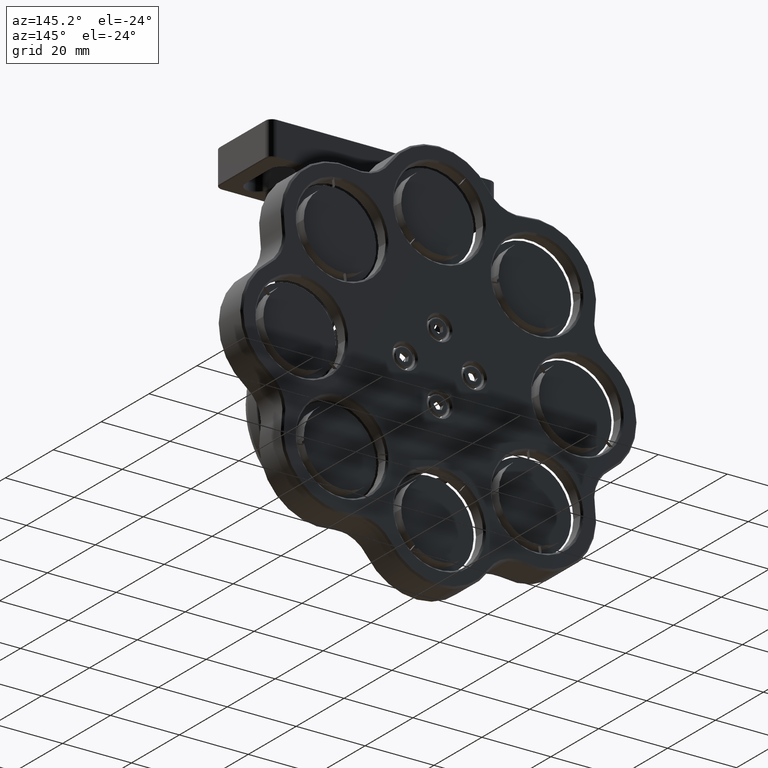
[diagram: clean part render]
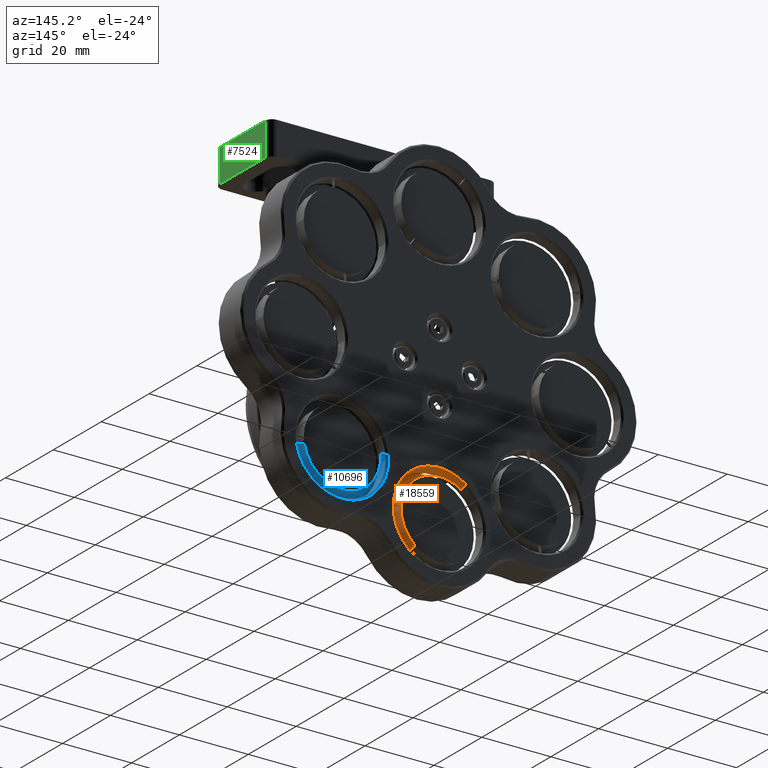
[diagram: same view with three faces highlighted in distinct colors, each labeled with its STEP entity id]
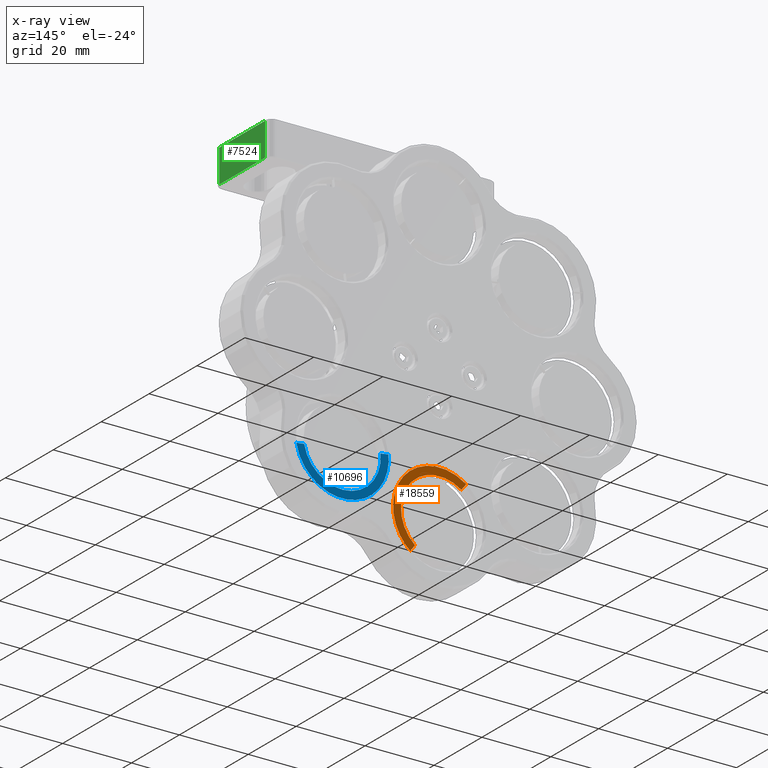
[diagram: x-ray of the same camera — body ghosted, the three highlighted faces saturated]
A machine part, auxiliary view with three faces highlighted in distinct colors.
The next image is the same camera in x-ray (body ghosted, the three faces saturated) — at least one of them is partly hidden behind the body in this view.
Their STEP definitions:

[orange] entity #18559 — the highlighted planar face has unit normal (-0, 1, 0).
#343 = CARTESIAN_POINT ( 'NONE',  ( -18.81061468662850800, 42.07911804988290072, 42.22013247031426886 ) ) ;
#544 = CARTESIAN_POINT ( 'NONE',  ( -27.35836673551142439, 42.07911804988290783, 43.21816426927031074 ) ) ;
#637 = B_SPLINE_CURVE_WITH_KNOTS ( 'NONE', 3,
 ( #16994, #6451, #3490, #9482, #15507, #18763, #14029, #2118, #1917, #12456, #3687, #2016, #12353, #17090, #3589, #8109, #544, #12548, #6642, #12643, #5166, #5262, #11168, #4871, #2213, #8198, #14215, #11262, #3780, #9777, #15799, #8294, #343, #18374, #10878, #16896, #14713, #11747, #8589, #17381, #10164, #4163, #6840, #1209, #918, #9872, #17674, #5455, #826, #8392, #8689, #12928, #10069, #5554, #11453, #6934, #17475, #3974, #9971, #7217, #2502, #18950, #15898, #16093, #7122, #4069, #8487, #3873, #13226, #19246, #14516, #15995, #1019, #10268, #2600, #12835, #7027, #13126, #13029, #2407, #19047, #11554, #14414, #19143, #17579, #14614, #1116, #5646, #11650, #16293, #5743, #17780, #16192, #2698, #4264, #2796 ),
 .UNSPECIFIED., .F., .F.,
 ( 4, 1, 1, 1, 1, 2, 2, 1, 1, 1, 2, 2, 1, 1, 2, 2, 2, 1, 1, 1, 2, 2, 1, 1, 1, 2, 2, 1, 1, 1, 1, 2, 2, 2, 1, 1, 1, 1, 2, 2, 1, 1, 1, 2, 2, 1, 1, 2, 2, 2, 1, 1, 1, 2, 2, 1, 1, 1, 2, 2, 1, 1, 1, 1, 2, 2, 4 ),
 ( 0.000000000000000000, 0.03125000000000235229, 0.04687500000000352496, 0.05468750000000387190, 0.05859375000000405231, 0.06054687500000426048, 0.06250000000000446865, 0.09375000000000814626, 0.1093750000000099365, 0.1171875000000109218, 0.1210937500000114075, 0.1250000000000118794, 0.1562500000000157652, 0.1718750000000175693, 0.1796875000000184575, 0.1875000000000193734, 0.2500000000000265898, 0.2812500000000301981, 0.2968750000000319189, 0.3046875000000328626, 0.3085937500000331957, 0.3125000000000335842, 0.3437500000000360822, 0.3593750000000374145, 0.3671875000000379696, 0.3710937500000383582, 0.3750000000000388023, 0.4062500000000415223, 0.4218750000000429101, 0.4296875000000435763, 0.4335937500000440203, 0.4355468750000442979, 0.4375000000000445199, 0.5000000000000498490, 0.5312500000000525135, 0.5468750000000538458, 0.5546875000000542899, 0.5585937500000546230, 0.5605468750000544009, 0.5625000000000541789, 0.5937500000000506262, 0.6093750000000487388, 0.6171875000000480727, 0.6210937500000477396, 0.6250000000000474065, 0.6562500000000447420, 0.6718750000000435207, 0.6796875000000426326, 0.6875000000000417444, 0.7500000000000340838, 0.7812500000000304201, 0.7968750000000284217, 0.8046875000000274225, 0.8085937500000268674, 0.8125000000000264233, 0.8437500000000217604, 0.8593750000000195399, 0.8671875000000184297, 0.8710937500000177636, 0.8750000000000169864, 0.9062500000000117684, 0.9218750000000091038, 0.9296875000000076605, 0.9335937500000071054, 0.9355468750000067724, 0.9375000000000065503, 1.000000000000000000 ),
 .UNSPECIFIED. ) ;
#826 = CARTESIAN_POINT ( 'NONE',  ( -13.55584032500972214, 42.07911804988290072, 37.80495120486193628 ) ) ;
#918 = CARTESIAN_POINT ( 'NONE',  ( -15.46072583662509281, 42.07911804988290783, 39.95584672119916547 ) ) ;
#1019 = CARTESIAN_POINT ( 'NONE',  ( -11.34675514903254978, 42.07911804988290072, 27.25462037262936121 ) ) ;
#1068 = CARTESIAN_POINT ( 'NONE',  ( -16.05698922596608824, 42.07911804988290072, 19.52929164651968108 ) ) ;
#1116 = CARTESIAN_POINT ( 'NONE',  ( -13.41013954376661133, 42.07911804988290783, 22.39456620716097746 ) ) ;
#1209 = CARTESIAN_POINT ( 'NONE',  ( -15.50022003064030152, 42.07911804988290072, 39.99187351587749362 ) ) ;
#1295 = CARTESIAN_POINT ( 'NONE',  ( -17.44286320728153683, 42.07911804988290072, 21.36725644875077990 ) ) ;
#1917 = CARTESIAN_POINT ( 'NONE',  ( -30.22733585256089128, 42.07911804988289362, 42.26132509510591007 ) ) ;
#2016 = CARTESIAN_POINT ( 'NONE',  ( -28.51163119390701794, 42.07911804988289362, 42.91748882590312064 ) ) ;
#2118 = CARTESIAN_POINT ( 'NONE',  ( -30.24897903449788927, 42.07911804988290783, 42.25132720826448463 ) ) ;
#2135 = VECTOR ( 'NONE', #17020, 1000.000000000000114 ) ;
#2213 = CARTESIAN_POINT ( 'NONE',  ( -22.00826224739008197, 42.07911804988291493, 43.26087118375036766 ) ) ;
#2342 = DIRECTION ( 'NONE',  ( 0.000000000000000000, 0.000000000000000000, 1.000000000000000000 ) ) ;
#2407 = CARTESIAN_POINT ( 'NONE',  ( -12.15302027469593327, 42.07911804988290783, 24.68877976150445264 ) ) ;
#2502 = CARTESIAN_POINT ( 'NONE',  ( -11.65401335581655395, 42.07911804988290072, 33.90044931950307472 ) ) ;
#2600 = CARTESIAN_POINT ( 'NONE',  ( -11.65071047846626229, 42.07911804988290072, 26.10791111250175334 ) ) ;
#2698 = CARTESIAN_POINT ( 'NONE',  ( -14.85257990699148145, 42.07911804988290783, 20.60246997011354608 ) ) ;
#2796 = CARTESIAN_POINT ( 'NONE',  ( -16.05698922596608824, 42.07911804988290072, 19.52929164651968108 ) ) ;
#3490 = CARTESIAN_POINT ( 'NONE',  ( -31.45862763419377117, 42.07911804988289362, 41.62755407153749587 ) ) ;
#3589 = CARTESIAN_POINT ( 'NONE',  ( -27.89399993274135880, 42.07911804988287940, 43.08661754813469003 ) ) ;
#3687 = CARTESIAN_POINT ( 'NONE',  ( -29.22127147010310466, 42.07911804988288651, 42.68921217583314842 ) ) ;
#3780 = CARTESIAN_POINT ( 'NONE',  ( -20.04995445193449655, 42.07911804988290072, 42.71796804002350001 ) ) ;
#3873 = CARTESIAN_POINT ( 'NONE',  ( -11.14098590987979520, 42.07911804988290783, 31.30332500684010455 ) ) ;
#3974 = CARTESIAN_POINT ( 'NONE',  ( -12.06984228864362407, 42.07911804988290783, 35.10966704888785017 ) ) ;
#4069 = CARTESIAN_POINT ( 'NONE',  ( -11.20305557227650972, 42.07911804988289362, 31.85450245663552948 ) ) ;
#4163 = CARTESIAN_POINT ( 'NONE',  ( -15.69916679391709202, 42.07911804988289362, 40.17005116746151572 ) ) ;
#4264 = CARTESIAN_POINT ( 'NONE',  ( -15.42943753728544110, 42.07911804988292204, 20.04001347131565680 ) ) ;
#4314 = FACE_OUTER_BOUND ( 'NONE', #4568, .T. ) ;
#4568 = EDGE_LOOP ( 'NONE', ( #14825, #12145, #17891, #17281 ) ) ;
#4679 = DIRECTION ( 'NONE',  ( -3.488278094132890012E-29, 1.000000000000000000, 8.407790785948902426E-45 ) ) ;
#4806 = DIRECTION ( 'NONE',  ( -0.6020555485054703837, 0.000000000000000000, 0.7984542043935750621 ) ) ;
#4871 = CARTESIAN_POINT ( 'NONE',  ( -23.35231936684175480, 42.07911804988288651, 43.47475625118490683 ) ) ;
#5166 = CARTESIAN_POINT ( 'NONE',  ( -25.38313889568515691, 42.07911804988290783, 43.47645562908137151 ) ) ;
#5262 = CARTESIAN_POINT ( 'NONE',  ( -25.27437385031060302, 42.07911804988290072, 43.48252004132390169 ) ) ;
#5455 = CARTESIAN_POINT ( 'NONE',  ( -14.28609326665418422, 42.07911804988290072, 38.77334730474770197 ) ) ;
#5554 = CARTESIAN_POINT ( 'NONE',  ( -12.56849814979651292, 42.07911804988290072, 36.16547790568776577 ) ) ;
#5646 = CARTESIAN_POINT ( 'NONE',  ( -13.85375668007859140, 42.07911804988290072, 21.79548075116750283 ) ) ;
#5743 = CARTESIAN_POINT ( 'NONE',  ( -14.25714319685857312, 42.07911804988290072, 21.29812827916182982 ) ) ;
#6068 = VERTEX_POINT ( 'NONE', #1295 ) ;
#6433 = CARTESIAN_POINT ( 'NONE',  ( -32.30133603271607967, 42.07911804988290072, 41.07276390198580174 ) ) ;
#6451 = CARTESIAN_POINT ( 'NONE',  ( -31.96966636732247125, 42.07911804988288651, 41.30409431219216287 ) ) ;
#6642 = CARTESIAN_POINT ( 'NONE',  ( -25.93623705546681535, 42.07911804988290783, 43.43484253270340645 ) ) ;
#6840 = CARTESIAN_POINT ( 'NONE',  ( -15.55960414035996564, 42.07911804988290072, 40.04572438642973253 ) ) ;
#6917 = AXIS2_PLACEMENT_3D ( 'NONE', #8737, #4679, #16798 ) ;
#6934 = CARTESIAN_POINT ( 'NONE',  ( -12.53469743709105266, 42.07911804988288651, 36.09919349445286230 ) ) ;
#7027 = CARTESIAN_POINT ( 'NONE',  ( -11.73593402690592846, 42.07911804988288651, 25.83772539152448644 ) ) ;
#7122 = CARTESIAN_POINT ( 'NONE',  ( -11.32194954260310382, 42.07911804988290783, 32.62023574278209992 ) ) ;
#7217 = CARTESIAN_POINT ( 'NONE',  ( -11.70058852464260113, 42.07911804988289362, 34.05373728685692925 ) ) ;
#8109 = CARTESIAN_POINT ( 'NONE',  ( -27.84418114186007998, 42.07911804988289362, 43.09914642224489256 ) ) ;
#8198 = CARTESIAN_POINT ( 'NONE',  ( -21.34483318663680862, 42.07911804988290072, 43.12087554602192085 ) ) ;
#8222 = LINE ( 'NONE', #10900, #2135 ) ;
#8294 = CARTESIAN_POINT ( 'NONE',  ( -19.42067550361510442, 42.07911804988290783, 42.48383502103114040 ) ) ;
#8392 = CARTESIAN_POINT ( 'NONE',  ( -13.21370371354160689, 42.07911804988290072, 37.30629979860838574 ) ) ;
#8487 = CARTESIAN_POINT ( 'NONE',  ( -11.16420050880632431, 42.07911804988290072, 31.52409422929106242 ) ) ;
#8564 = EDGE_CURVE ( 'NONE', #18405, #6068, #10916, .T. ) ;
#8589 = CARTESIAN_POINT ( 'NONE',  ( -17.09102278846290091, 42.07911804988290783, 41.24155608338720924 ) ) ;
#8689 = CARTESIAN_POINT ( 'NONE',  ( -12.85477658736516737, 42.07911804988290072, 36.69924645110229733 ) ) ;
#8737 = CARTESIAN_POINT ( 'NONE',  ( -24.57838973153791784, 42.07911804988290072, 30.00000000000002842 ) ) ;
#9482 = CARTESIAN_POINT ( 'NONE',  ( -30.83873086755990656, 42.07911804988290072, 41.96373604283642322 ) ) ;
#9777 = CARTESIAN_POINT ( 'NONE',  ( -19.94332437883803522, 42.07911804988290072, 42.67948609439697094 ) ) ;
#9872 = CARTESIAN_POINT ( 'NONE',  ( -15.43994189081708335, 42.07911804988290072, 39.93676921381884171 ) ) ;
#9971 = CARTESIAN_POINT ( 'NONE',  ( -11.81543928745842820, 42.07911804988288651, 34.40896835219029981 ) ) ;
#10069 = CARTESIAN_POINT ( 'NONE',  ( -12.60318285380084191, 42.07911804988289362, 36.23289058954740938 ) ) ;
#10164 = CARTESIAN_POINT ( 'NONE',  ( -15.98229102454300588, 42.07911804988290072, 40.41340372849788309 ) ) ;
#10268 = CARTESIAN_POINT ( 'NONE',  ( -11.53966526522928326, 42.07911804988290783, 26.48799812136895682 ) ) ;
#10878 = CARTESIAN_POINT ( 'NONE',  ( -17.78701787553670144, 42.07911804988290783, 41.66831469752455774 ) ) ;
#10900 = CARTESIAN_POINT ( 'NONE',  ( -30.91546205140068793, 42.07911804988290072, 39.23479909975473134 ) ) ;
#10916 = LINE ( 'NONE', #18031, #18039 ) ;
#11168 = CARTESIAN_POINT ( 'NONE',  ( -24.25459983312286738, 42.07911804988289362, 43.52661651493806971 ) ) ;
#11262 = CARTESIAN_POINT ( 'NONE',  ( -20.21016829592206676, 42.07911804988290072, 42.77465804896295509 ) ) ;
#11453 = CARTESIAN_POINT ( 'NONE',  ( -12.54549475264442826, 42.07911804988290072, 36.12046083855054235 ) ) ;
#11554 = CARTESIAN_POINT ( 'NONE',  ( -12.66654844876049957, 42.07911804988290783, 23.64544755148413202 ) ) ;
#11650 = CARTESIAN_POINT ( 'NONE',  ( -14.08645619274469851, 42.07911804988290783, 21.50353771607301923 ) ) ;
#11747 = CARTESIAN_POINT ( 'NONE',  ( -17.49959908982608781, 42.07911804988290072, 41.49536965041658476 ) ) ;
#11805 = AXIS2_PLACEMENT_3D ( 'NONE', #17515, #14160, #2342 ) ;
#11846 = EDGE_CURVE ( 'NONE', #6068, #19481, #13377, .T. ) ;
#12145 = ORIENTED_EDGE ( 'NONE', *, *, #11846, .F. ) ;
#12353 = CARTESIAN_POINT ( 'NONE',  ( -28.15239012293370990, 42.07911804988289362, 43.01910408274942910 ) ) ;
#12456 = CARTESIAN_POINT ( 'NONE',  ( -29.81437707984171936, 42.07911804988290783, 42.45061024198350452 ) ) ;
#12548 = CARTESIAN_POINT ( 'NONE',  ( -26.70584844746252884, 42.07911804988290072, 43.34439062837475376 ) ) ;
#12643 = CARTESIAN_POINT ( 'NONE',  ( -25.60461644691036298, 42.07911804988290783, 43.46143359571000531 ) ) ;
#12835 = CARTESIAN_POINT ( 'NONE',  ( -11.70142774595467472, 42.07911804988290072, 25.94570756229359532 ) ) ;
#12928 = CARTESIAN_POINT ( 'NONE',  ( -12.68537108774438416, 42.07911804988290783, 36.38939643396336976 ) ) ;
#13029 = CARTESIAN_POINT ( 'NONE',  ( -11.91209349706667631, 42.07911804988289362, 25.30818877298801084 ) ) ;
#13126 = CARTESIAN_POINT ( 'NONE',  ( -11.75390608238677714, 42.07911804988290072, 25.78269660753762338 ) ) ;
#13226 = CARTESIAN_POINT ( 'NONE',  ( -11.13089732345414973, 42.07911804988289362, 31.19485919371113170 ) ) ;
#13377 = CIRCLE ( 'NONE', #11805, 11.20000000000007390 ) ;
#14029 = CARTESIAN_POINT ( 'NONE',  ( -30.29480817273654480, 42.07911804988290072, 42.23001102714381005 ) ) ;
#14160 = DIRECTION ( 'NONE',  ( 0.000000000000000000, -1.000000000000000000, -0.000000000000000000 ) ) ;
#14215 = CARTESIAN_POINT ( 'NONE',  ( -20.58588173895998352, 42.07911804988290783, 42.89970436998586223 ) ) ;
#14414 = CARTESIAN_POINT ( 'NONE',  ( -12.74647435314210675, 42.07911804988290783, 23.49930249005808136 ) ) ;
#14516 = CARTESIAN_POINT ( 'NONE',  ( -11.06746858372900100, 42.07911804988290783, 29.27383589634932903 ) ) ;
#14614 = CARTESIAN_POINT ( 'NONE',  ( -13.06723666524813865, 42.07911804988289362, 22.93412411653454441 ) ) ;
#14713 = CARTESIAN_POINT ( 'NONE',  ( -17.54884297456071707, 42.07911804988291493, 41.52556040660759606 ) ) ;
#14766 = PLANE ( 'NONE',  #6917 ) ;
#14825 = ORIENTED_EDGE ( 'NONE', *, *, #16061, .F. ) ;
#15507 = CARTESIAN_POINT ( 'NONE',  ( -30.52286125641371939, 42.07911804988290783, 42.12153009150156890 ) ) ;
#15799 = CARTESIAN_POINT ( 'NONE',  ( -19.88899898214314987, 42.07911804988289362, 42.65948826654995685 ) ) ;
#15898 = CARTESIAN_POINT ( 'NONE',  ( -11.60918595526385744, 42.07911804988290072, 33.74870430103860741 ) ) ;
#15995 = CARTESIAN_POINT ( 'NONE',  ( -11.23142700991061638, 42.07911804988290783, 27.92277927404000692 ) ) ;
#16061 = EDGE_CURVE ( 'NONE', #19481, #18078, #8222, .T. ) ;
#16093 = CARTESIAN_POINT ( 'NONE',  ( -11.47225664099072162, 42.07911804988289362, 33.26763128349546861 ) ) ;
#16192 = CARTESIAN_POINT ( 'NONE',  ( -14.30997372346210206, 42.07911804988289362, 21.23585461706337441 ) ) ;
#16293 = CARTESIAN_POINT ( 'NONE',  ( -14.20552868520527490, 42.07911804988290072, 21.35946612175135328 ) ) ;
#16798 = DIRECTION ( 'NONE',  ( -1.000000000000000000, -3.488278094132890012E-29, 0.000000000000000000 ) ) ;
#16880 = EDGE_CURVE ( 'NONE', #18078, #18405, #637, .T. ) ;
#16896 = CARTESIAN_POINT ( 'NONE',  ( -17.64393330385464154, 42.07911804988290072, 41.58303085076634176 ) ) ;
#16994 = CARTESIAN_POINT ( 'NONE',  ( -32.30133603271607967, 42.07911804988290072, 41.07276390198580174 ) ) ;
#17020 = DIRECTION ( 'NONE',  ( -0.6020555485054555067, 0.000000000000000000, 0.7984542043935863864 ) ) ;
#17090 = CARTESIAN_POINT ( 'NONE',  ( -27.99748232118617253, 42.07911804988289362, 43.05996996392883602 ) ) ;
#17281 = ORIENTED_EDGE ( 'NONE', *, *, #16880, .F. ) ;
#17381 = CARTESIAN_POINT ( 'NONE',  ( -16.56453517984144597, 42.07911804988289362, 40.87890484646179345 ) ) ;
#17475 = CARTESIAN_POINT ( 'NONE',  ( -12.33024739060838826, 42.07911804988288651, 35.69352861639564622 ) ) ;
#17515 = CARTESIAN_POINT ( 'NONE',  ( -24.57838973153791784, 42.07911804988290072, 30.00000000000002842 ) ) ;
#17579 = CARTESIAN_POINT ( 'NONE',  ( -12.82872969694804688, 42.07911804988290072, 23.35182059354004380 ) ) ;
#17674 = CARTESIAN_POINT ( 'NONE',  ( -14.82721671697526489, 42.07911804988288651, 39.37119512463055315 ) ) ;
#17780 = CARTESIAN_POINT ( 'NONE',  ( -14.29168252539540696, 42.07911804988290783, 21.25732685663669486 ) ) ;
#17891 = ORIENTED_EDGE ( 'NONE', *, *, #8564, .F. ) ;
#18031 = CARTESIAN_POINT ( 'NONE',  ( -16.05698922596609535, 42.07911804988290072, 19.52929164651967753 ) ) ;
#18039 = VECTOR ( 'NONE', #4806, 1000.000000000000114 ) ;
#18078 = VERTEX_POINT ( 'NONE', #6433 ) ;
#18374 = CARTESIAN_POINT ( 'NONE',  ( -18.12402542031637509, 42.07911804988290072, 41.86085760360065677 ) ) ;
#18405 = VERTEX_POINT ( 'NONE', #1068 ) ;
#18559 = ADVANCED_FACE ( 'NONE', ( #4314 ), #14766, .F. ) ;
#18626 = CARTESIAN_POINT ( 'NONE',  ( -30.91546205140068793, 42.07911804988290072, 39.23479909975474555 ) ) ;
#18763 = CARTESIAN_POINT ( 'NONE',  ( -30.36344614388328367, 42.07911804988288651, 42.19785288158803382 ) ) ;
#18950 = CARTESIAN_POINT ( 'NONE',  ( -11.62355137363618063, 42.07911804988290783, 33.79802487855360482 ) ) ;
#19047 = CARTESIAN_POINT ( 'NONE',  ( -12.48661940852817764, 42.07911804988290072, 23.98935509195987237 ) ) ;
#19143 = CARTESIAN_POINT ( 'NONE',  ( -12.80038350241156309, 42.07911804988289362, 23.40214886788340110 ) ) ;
#19246 = CARTESIAN_POINT ( 'NONE',  ( -11.04906169666991467, 42.07911804988290072, 30.17741805282540923 ) ) ;
#19481 = VERTEX_POINT ( 'NONE', #18626 ) ;

[blue] entity #10696 — the highlighted planar face has unit normal (-0, 1, 0).
#615 = AXIS2_PLACEMENT_3D ( 'NONE', #856, #4195, #14652 ) ;
#704 = EDGE_CURVE ( 'NONE', #10100, #12209, #2494, .T. ) ;
#796 = CARTESIAN_POINT ( 'NONE',  ( 4.432036901879993884, 42.07911804988290072, 28.23508446743344535 ) ) ;
#856 = CARTESIAN_POINT ( 'NONE',  ( 3.705881515899406065, 42.07911804988286519, 41.71572875259760593 ) ) ;
#888 = CARTESIAN_POINT ( 'NONE',  ( 7.528849585347284545, 42.07911804988289362, 28.76491113767565011 ) ) ;
#985 = CARTESIAN_POINT ( 'NONE',  ( -4.701685282913675046, 42.07911804988290072, 31.15276722438536439 ) ) ;
#1082 = CARTESIAN_POINT ( 'NONE',  ( 8.886231208472958443, 42.07911804988290783, 29.24126964801461881 ) ) ;
#1182 = CARTESIAN_POINT ( 'NONE',  ( 10.69727182938776799, 42.07911804988289362, 30.15139891866942889 ) ) ;
#1361 = CARTESIAN_POINT ( 'NONE',  ( -9.679050437750138514, 42.07911804988290072, 39.93373919339985889 ) ) ;
#1549 = CARTESIAN_POINT ( 'NONE',  ( -9.430061628771511550, 42.07911804988290783, 38.57244311236981815 ) ) ;
#1746 = CARTESIAN_POINT ( 'NONE',  ( -9.738618968649976892, 42.07911804988290072, 40.49078846481220495 ) ) ;
#2019 = ORIENTED_EDGE ( 'NONE', *, *, #18705, .F. ) ;
#2272 = CARTESIAN_POINT ( 'NONE',  ( 1.430696008361423965, 42.07911804988289362, 28.40267539749109105 ) ) ;
#2374 = CARTESIAN_POINT ( 'NONE',  ( -2.674998498487503262, 42.07911804988290783, 29.81878041122384104 ) ) ;
#2470 = CARTESIAN_POINT ( 'NONE',  ( -4.440576705934871526, 42.07911804988290783, 30.94660800513335630 ) ) ;
#2494 = B_SPLINE_CURVE_WITH_KNOTS ( 'NONE', 3,
 ( #6616, #7785, #13799, #6322, #6418, #12420, #17163, #3658, #17348, #14283, #9745, #3745, #18916, #11525, #7187, #16159, #14684, #8554, #18828, #5330, #17441, #10038, #2568, #8264, #18732, #1182, #5234, #3942, #11234, #17259, #14581, #1082, #15769, #888, #9943, #12810, #14486, #8456, #10130, #8654, #7093, #2662, #796, #15965, #6812, #17547, #6902, #4038, #2272, #11324, #4132, #19015, #5422, #6995, #3842, #9842, #16066, #19118, #5618, #15866, #2374, #8363, #14381, #12899, #11418, #2470, #985, #5522, #12995, #11619, #17649, #10417, #3037, #11987, #16441, #18110, #7644, #9211, #19399, #15045, #13369, #15237, #9019, #2940, #13760, #1549, #12181, #1361, #16345, #1746, #7552, #8831, #16721, #7461, #18018, #13563 ),
 .UNSPECIFIED., .F., .F.,
 ( 4, 1, 1, 1, 1, 2, 2, 1, 1, 1, 2, 2, 1, 1, 2, 2, 2, 1, 1, 1, 2, 2, 1, 1, 1, 2, 2, 1, 1, 1, 1, 2, 2, 2, 1, 1, 1, 1, 2, 2, 1, 1, 1, 2, 2, 1, 1, 2, 2, 2, 1, 1, 1, 2, 2, 1, 1, 1, 2, 2, 1, 1, 1, 1, 2, 2, 4 ),
 ( 0.000000000000000000, 0.03124999999999643341, 0.04687499999999491379, 0.05468749999999415051, 0.05859374999999402561, 0.06054687499999392153, 0.06249999999999381051, 0.09374999999999329703, 0.1093749999999929778, 0.1171874999999930750, 0.1210937499999931305, 0.1249999999999931721, 0.1562499999999942824, 0.1718749999999950873, 0.1796874999999954481, 0.1874999999999958089, 0.2499999999999987788, 0.2812500000000003331, 0.2968750000000011102, 0.3046875000000014433, 0.3085937500000016098, 0.3125000000000017208, 0.3437500000000029421, 0.3593750000000034972, 0.3671875000000037192, 0.3710937500000038303, 0.3750000000000039413, 0.4062500000000046629, 0.4218750000000049960, 0.4296875000000051625, 0.4335937500000052736, 0.4355468750000052736, 0.4375000000000052180, 0.5000000000000072164, 0.5312500000000082157, 0.5468750000000087708, 0.5546875000000091038, 0.5585937500000092149, 0.5605468750000093259, 0.5625000000000094369, 0.5937500000000104361, 0.6093750000000108802, 0.6171875000000111022, 0.6210937500000112133, 0.6250000000000112133, 0.6562500000000119904, 0.6718750000000123235, 0.6796875000000123235, 0.6875000000000125455, 0.7500000000000125455, 0.7812500000000127676, 0.7968750000000128786, 0.8046875000000129896, 0.8085937500000131006, 0.8125000000000132117, 0.8437500000000123235, 0.8593750000000121014, 0.8671875000000122125, 0.8710937500000123235, 0.8750000000000123235, 0.9062500000000115463, 0.9218750000000108802, 0.9296875000000107692, 0.9335937500000104361, 0.9355468750000103251, 0.9375000000000102141, 1.000000000000000000 ),
 .UNSPECIFIED. ) ;
#2568 = CARTESIAN_POINT ( 'NONE',  ( 13.04168974730278130, 42.07911804988290072, 31.92201245556067946 ) ) ;
#2662 = CARTESIAN_POINT ( 'NONE',  ( 4.618634910556479234, 42.07911804988290072, 28.24585785621411560 ) ) ;
#2751 = DIRECTION ( 'NONE',  ( 0.9903099433928138629, 0.000000000000000000, -0.1388748213943828413 ) ) ;
#2940 = CARTESIAN_POINT ( 'NONE',  ( -9.287811834353291829, 42.07911804988290072, 38.05280595590786419 ) ) ;
#3037 = CARTESIAN_POINT ( 'NONE',  ( -7.591573575035162946, 42.07911804988288651, 34.30082676459290525 ) ) ;
#3179 = EDGE_LOOP ( 'NONE', ( #2019, #4795, #6652, #4689 ) ) ;
#3658 = CARTESIAN_POINT ( 'NONE',  ( 16.37859021284547012, 42.07911804988290072, 37.06244435454564723 ) ) ;
#3680 = FACE_OUTER_BOUND ( 'NONE', #3179, .T. ) ;
#3745 = CARTESIAN_POINT ( 'NONE',  ( 15.62114717068323344, 42.07911804988291493, 35.36290651798704232 ) ) ;
#3842 = CARTESIAN_POINT ( 'NONE',  ( -0.4748407580566761932, 42.07911804988287940, 28.87936775279083434 ) ) ;
#3866 = CARTESIAN_POINT ( 'NONE',  ( 3.705881515899406065, 42.07911804988290072, 41.71572875259760593 ) ) ;
#3942 = CARTESIAN_POINT ( 'NONE',  ( 9.650129850830071021, 42.07911804988290072, 29.59388241999626246 ) ) ;
#4038 = CARTESIAN_POINT ( 'NONE',  ( 2.631822264501961772, 42.07911804988289362, 28.23428275540156918 ) ) ;
#4132 = CARTESIAN_POINT ( 'NONE',  ( 0.1531177560534255355, 42.07911804988290783, 28.68879980393267459 ) ) ;
#4195 = DIRECTION ( 'NONE',  ( 0.000000000000000000, -1.000000000000000000, -0.000000000000000000 ) ) ;
#4397 = VECTOR ( 'NONE', #2751, 1000.000000000000227 ) ;
#4689 = ORIENTED_EDGE ( 'NONE', *, *, #704, .F. ) ;
#4795 = ORIENTED_EDGE ( 'NONE', *, *, #5685, .F. ) ;
#5017 = CIRCLE ( 'NONE', #615, 11.20000000000002949 ) ;
#5234 = CARTESIAN_POINT ( 'NONE',  ( 10.00422047575573714, 42.07911804988290783, 29.77113084179931235 ) ) ;
#5330 = CARTESIAN_POINT ( 'NONE',  ( 13.95020436539142672, 42.07911804988290072, 32.92270964205060579 ) ) ;
#5422 = CARTESIAN_POINT ( 'NONE',  ( -0.3545492711999618796, 42.07911804988290783, 28.84065956097568417 ) ) ;
#5522 = CARTESIAN_POINT ( 'NONE',  ( -4.874207897509905685, 42.07911804988292204, 31.29245943833435817 ) ) ;
#5618 = CARTESIAN_POINT ( 'NONE',  ( -2.201275871192709399, 42.07911804988291493, 29.57334852577359641 ) ) ;
#5685 = EDGE_CURVE ( 'NONE', #10471, #6679, #5017, .T. ) ;
#6322 = CARTESIAN_POINT ( 'NONE',  ( 16.59225006993755258, 42.07911804988290783, 37.68281953820599739 ) ) ;
#6418 = CARTESIAN_POINT ( 'NONE',  ( 16.48047376776717954, 42.07911804988290783, 37.34788875235108208 ) ) ;
#6455 = VECTOR ( 'NONE', #9457, 1000.000000000000114 ) ;
#6616 = CARTESIAN_POINT ( 'NONE',  ( 16.99645565777387901, 42.07911804988290072, 39.34705001132852686 ) ) ;
#6652 = ORIENTED_EDGE ( 'NONE', *, *, #10865, .F. ) ;
#6679 = VERTEX_POINT ( 'NONE', #7801 ) ;
#6734 = PLANE ( 'NONE',  #8941 ) ;
#6812 = CARTESIAN_POINT ( 'NONE',  ( 4.298566276238963368, 42.07911804988290072, 28.22872005491148428 ) ) ;
#6902 = CARTESIAN_POINT ( 'NONE',  ( 3.437196573249206022, 42.07911804988290072, 28.19417256902460167 ) ) ;
#6995 = CARTESIAN_POINT ( 'NONE',  ( -0.4267430264989726107, 42.07911804988290072, 28.86380173746568900 ) ) ;
#7093 = CARTESIAN_POINT ( 'NONE',  ( 4.990910220070800207, 42.07911804988289362, 28.27398067348109478 ) ) ;
#7187 = CARTESIAN_POINT ( 'NONE',  ( 15.30400798402279605, 42.07911804988290783, 34.80658319855932348 ) ) ;
#7461 = CARTESIAN_POINT ( 'NONE',  ( -9.816361774104905180, 42.07911804988290072, 41.48359988366831175 ) ) ;
#7552 = CARTESIAN_POINT ( 'NONE',  ( -9.745494401890677949, 42.07911804988289362, 40.57065784044807799 ) ) ;
#7644 = CARTESIAN_POINT ( 'NONE',  ( -8.318278600749732021, 42.07911804988290072, 35.57791383758113568 ) ) ;
#7785 = CARTESIAN_POINT ( 'NONE',  ( 16.92550509001200254, 42.07911804988290783, 38.94894884006451719 ) ) ;
#7801 = CARTESIAN_POINT ( 'NONE',  ( 14.71685739247593183, 42.07911804988288651, 39.66672649651015092 ) ) ;
#8264 = CARTESIAN_POINT ( 'NONE',  ( 12.36701036681257904, 42.07911804988290072, 31.32067456343947498 ) ) ;
#8284 = DIRECTION ( 'NONE',  ( -3.488278094132888331E-29, 1.000000000000000000, 7.006492321624085355E-45 ) ) ;
#8363 = CARTESIAN_POINT ( 'NONE',  ( -2.768963389409182518, 42.07911804988290072, 29.86966555380978150 ) ) ;
#8456 = CARTESIAN_POINT ( 'NONE',  ( 6.828874482602446783, 42.07911804988290783, 28.58181405518748619 ) ) ;
#8476 = CARTESIAN_POINT ( 'NONE',  ( 16.99645565777387901, 42.07911804988290072, 39.34705001132852686 ) ) ;
#8554 = CARTESIAN_POINT ( 'NONE',  ( 14.64613110474678059, 42.07911804988289362, 33.78416013319066025 ) ) ;
#8654 = CARTESIAN_POINT ( 'NONE',  ( 5.731778007744840586, 42.07911804988290072, 28.35653046683752621 ) ) ;
#8831 = CARTESIAN_POINT ( 'NONE',  ( -9.749922371014202227, 42.07911804988290072, 40.62393179642354823 ) ) ;
#8941 = AXIS2_PLACEMENT_3D ( 'NONE', #3866, #8284, #12830 ) ;
#9019 = CARTESIAN_POINT ( 'NONE',  ( -9.257233374314166596, 42.07911804988290072, 37.94598844583843089 ) ) ;
#9211 = CARTESIAN_POINT ( 'NONE',  ( -8.344481664761945083, 42.07911804988290783, 35.62953322619597429 ) ) ;
#9457 = DIRECTION ( 'NONE',  ( 0.9903099433928104212, 0.000000000000000000, -0.1388748213944074050 ) ) ;
#9745 = CARTESIAN_POINT ( 'NONE',  ( 15.96152265493388001, 42.07911804988288651, 36.02611393673991103 ) ) ;
#9842 = CARTESIAN_POINT ( 'NONE',  ( -0.4975138963313135432, 42.07911804988290072, 28.88677118097342245 ) ) ;
#9943 = CARTESIAN_POINT ( 'NONE',  ( 7.154400870580523097, 42.07911804988290072, 28.66275921201284760 ) ) ;
#10038 = CARTESIAN_POINT ( 'NONE',  ( 13.73159795458174059, 42.07911804988289362, 32.67428249387198491 ) ) ;
#10100 = VERTEX_POINT ( 'NONE', #8476 ) ;
#10130 = CARTESIAN_POINT ( 'NONE',  ( 6.360494114857565329, 42.07911804988291493, 28.47238027626730883 ) ) ;
#10417 = CARTESIAN_POINT ( 'NONE',  ( -7.200663194164814485, 42.07911804988290783, 33.74681776525108035 ) ) ;
#10471 = VERTEX_POINT ( 'NONE', #12892 ) ;
#10696 = ADVANCED_FACE ( 'NONE', ( #3680 ), #6734, .F. ) ;
#10865 = EDGE_CURVE ( 'NONE', #12209, #10471, #18543, .T. ) ;
#11022 = CARTESIAN_POINT ( 'NONE',  ( -9.723567447369443784, 42.07911804988290072, 43.09409755047384749 ) ) ;
#11234 = CARTESIAN_POINT ( 'NONE',  ( 9.496755665552722547, 42.07911804988290072, 29.52068001421609367 ) ) ;
#11324 = CARTESIAN_POINT ( 'NONE',  ( 0.8361690994854337200, 42.07911804988287230, 28.51334807024083773 ) ) ;
#11418 = CARTESIAN_POINT ( 'NONE',  ( -3.815050774059767225, 42.07911804988289362, 30.48922353857884815 ) ) ;
#11525 = CARTESIAN_POINT ( 'NONE',  ( 15.35833839513144561, 42.07911804988290072, 34.89859898465648769 ) ) ;
#11619 = CARTESIAN_POINT ( 'NONE',  ( -5.735344574191754141, 42.07911804988290783, 32.02359564598309305 ) ) ;
#11987 = CARTESIAN_POINT ( 'NONE',  ( -7.997249316183340007, 42.07911804988290072, 34.97931860838431106 ) ) ;
#12181 = CARTESIAN_POINT ( 'NONE',  ( -9.569117734643771911, 42.07911804988290072, 39.19643711962036292 ) ) ;
#12209 = VERTEX_POINT ( 'NONE', #11022 ) ;
#12420 = CARTESIAN_POINT ( 'NONE',  ( 16.42171862310246411, 42.07911804988290783, 37.18119688282755675 ) ) ;
#12423 = CARTESIAN_POINT ( 'NONE',  ( -9.723567447369445560, 42.07911804988290072, 43.09409755047386170 ) ) ;
#12810 = CARTESIAN_POINT ( 'NONE',  ( 6.992920013300243376, 42.07911804988290072, 28.62188792746511012 ) ) ;
#12830 = DIRECTION ( 'NONE',  ( -1.000000000000000000, -3.488278094132888331E-29, 0.000000000000000000 ) ) ;
#12892 = CARTESIAN_POINT ( 'NONE',  ( -7.443969182071458413, 42.07911804988286519, 42.77442106529219501 ) ) ;
#12899 = CARTESIAN_POINT ( 'NONE',  ( -3.250989828581871688, 42.07911804988290072, 30.13772893016106735 ) ) ;
#12995 = CARTESIAN_POINT ( 'NONE',  ( -4.958038517375419119, 42.07911804988290783, 31.36202264245124738 ) ) ;
#13369 = CARTESIAN_POINT ( 'NONE',  ( -9.094459049836510545, 42.07911804988290072, 37.41572373444797961 ) ) ;
#13563 = CARTESIAN_POINT ( 'NONE',  ( -9.723567447369443784, 42.07911804988290072, 43.09409755047384749 ) ) ;
#13760 = CARTESIAN_POINT ( 'NONE',  ( -9.303355512048195664, 42.07911804988290783, 38.10843720635497789 ) ) ;
#13799 = CARTESIAN_POINT ( 'NONE',  ( 16.79286672564193950, 42.07911804988290783, 38.35886929714708771 ) ) ;
#14283 = CARTESIAN_POINT ( 'NONE',  ( 16.21219460810995372, 42.07911804988289362, 36.61421998077430118 ) ) ;
#14381 = CARTESIAN_POINT ( 'NONE',  ( -2.813996188966692458, 42.07911804988290072, 29.89438258387648872 ) ) ;
#14486 = CARTESIAN_POINT ( 'NONE',  ( 6.885043255854289335, 42.07911804988290783, 28.59528665158102001 ) ) ;
#14581 = CARTESIAN_POINT ( 'NONE',  ( 9.341591517001111455, 42.07911804988290072, 29.44821875443952308 ) ) ;
#14652 = DIRECTION ( 'NONE',  ( 0.000000000000000000, 0.000000000000000000, 1.000000000000000000 ) ) ;
#14684 = CARTESIAN_POINT ( 'NONE',  ( 15.01827569658860817, 42.07911804988291493, 34.33481575400797681 ) ) ;
#15045 = CARTESIAN_POINT ( 'NONE',  ( -8.835781332805096255, 42.07911804988290072, 36.68526559796018915 ) ) ;
#15237 = CARTESIAN_POINT ( 'NONE',  ( -9.210409359324959411, 42.07911804988289362, 37.78613213289136041 ) ) ;
#15769 = CARTESIAN_POINT ( 'NONE',  ( 8.268387205998568135, 42.07911804988290783, 28.99635736920684792 ) ) ;
#15866 = CARTESIAN_POINT ( 'NONE',  ( -2.533673919586945544, 42.07911804988290072, 29.74332306774613599 ) ) ;
#15965 = CARTESIAN_POINT ( 'NONE',  ( 4.351967679464499916, 42.07911804988290072, 28.23117187649590676 ) ) ;
#16066 = CARTESIAN_POINT ( 'NONE',  ( -0.9289302967817135714, 42.07911804988290072, 29.02905155285760586 ) ) ;
#16159 = CARTESIAN_POINT ( 'NONE',  ( 15.27764003100414847, 42.07911804988290072, 34.76249674185280014 ) ) ;
#16246 = CARTESIAN_POINT ( 'NONE',  ( 14.71685739247597624, 42.07911804988290072, 39.66672649651013671 ) ) ;
#16345 = CARTESIAN_POINT ( 'NONE',  ( -9.720941934200501677, 42.07911804988290072, 40.30471749661972325 ) ) ;
#16441 = CARTESIAN_POINT ( 'NONE',  ( -8.187490594290622425, 42.07911804988290072, 35.32660153308647466 ) ) ;
#16612 = LINE ( 'NONE', #16246, #4397 ) ;
#16721 = CARTESIAN_POINT ( 'NONE',  ( -9.752171707034738901, 42.07911804988290783, 40.65204879282191541 ) ) ;
#17163 = CARTESIAN_POINT ( 'NONE',  ( 16.39592349105054581, 42.07911804988290072, 37.10992326518974238 ) ) ;
#17259 = CARTESIAN_POINT ( 'NONE',  ( 9.394145973076886591, 42.07911804988290072, 29.47249201115465311 ) ) ;
#17348 = CARTESIAN_POINT ( 'NONE',  ( 16.37035574571439156, 42.07911804988290783, 37.04007074024822543 ) ) ;
#17441 = CARTESIAN_POINT ( 'NONE',  ( 13.80421826870435176, 42.07911804988290072, 32.75547918203578490 ) ) ;
#17547 = CARTESIAN_POINT ( 'NONE',  ( 4.270379972382539968, 42.07911804988289362, 28.22751342072745118 ) ) ;
#17649 = CARTESIAN_POINT ( 'NONE',  ( -6.361258009718701700, 42.07911804988290072, 32.67554035082554265 ) ) ;
#18018 = CARTESIAN_POINT ( 'NONE',  ( -9.806178636367281598, 42.07911804988291493, 42.28921663025082012 ) ) ;
#18110 = CARTESIAN_POINT ( 'NONE',  ( -8.266323300808000596, 42.07911804988290783, 35.47715928713166988 ) ) ;
#18543 = LINE ( 'NONE', #12423, #6455 ) ;
#18705 = EDGE_CURVE ( 'NONE', #6679, #10100, #16612, .T. ) ;
#18732 = CARTESIAN_POINT ( 'NONE',  ( 11.26537888183931102, 42.07911804988291493, 30.52152224158211880 ) ) ;
#18828 = CARTESIAN_POINT ( 'NONE',  ( 14.16589282551106876, 42.07911804988290072, 33.17600354411146668 ) ) ;
#18916 = CARTESIAN_POINT ( 'NONE',  ( 15.43897821050493135, 42.07911804988290072, 35.03703188343236263 ) ) ;
#19015 = CARTESIAN_POINT ( 'NONE',  ( -0.1857670697650803671, 42.07911804988290072, 28.78810907464952251 ) ) ;
#19118 = CARTESIAN_POINT ( 'NONE',  ( -1.525916983899157531, 42.07911804988287940, 29.25776981306346869 ) ) ;
#19399 = CARTESIAN_POINT ( 'NONE',  ( -8.568153978684692973, 42.07911804988289362, 36.07691632736888465 ) ) ;

[green] entity #7524 — the highlighted planar face has unit normal (-1, 0, 0).
#207 = CARTESIAN_POINT ( 'NONE',  ( 8.421610268378051600, 16.67911804987121016, 134.8000000000000114 ) ) ;
#794 = CARTESIAN_POINT ( 'NONE',  ( 8.421610268378051600, -2.320881950128792059, 125.0000000000000000 ) ) ;
#2474 = LINE ( 'NONE', #10044, #15902 ) ;
#2943 = ORIENTED_EDGE ( 'NONE', *, *, #7108, .F. ) ;
#3770 = LINE ( 'NONE', #9771, #18395 ) ;
#4231 = CARTESIAN_POINT ( 'NONE',  ( 8.421610268380989694, -2.320881950128794280, 125.2000000000158479 ) ) ;
#4597 = EDGE_CURVE ( 'NONE', #10310, #18142, #11101, .T. ) ;
#4887 = VERTEX_POINT ( 'NONE', #14841 ) ;
#4901 = CARTESIAN_POINT ( 'NONE',  ( 8.421610268378051600, 16.67911804987121016, 125.0000000000000000 ) ) ;
#5063 = DIRECTION ( 'NONE',  ( -0.000000000000000000, -1.000000000000000000, -0.000000000000000000 ) ) ;
#5232 = LINE ( 'NONE', #794, #11051 ) ;
#5415 = AXIS2_PLACEMENT_3D ( 'NONE', #19509, #6007, #14506 ) ;
#5445 = FACE_OUTER_BOUND ( 'NONE', #14694, .T. ) ;
#6007 = DIRECTION ( 'NONE',  ( -1.000000000000000000, 0.000000000000000000, 0.000000000000000000 ) ) ;
#7000 = DIRECTION ( 'NONE',  ( 0.000000000000000000, 1.000000000000000000, -0.000000000000000000 ) ) ;
#7108 = EDGE_CURVE ( 'NONE', #13240, #4887, #5232, .T. ) ;
#7524 = ADVANCED_FACE ( 'NONE', ( #5445 ), #10434, .F. ) ;
#9411 = VECTOR ( 'NONE', #15345, 1000.000000000000000 ) ;
#9771 = CARTESIAN_POINT ( 'NONE',  ( 8.421610268378053377, 7.179118049871216378, 125.2000000000000028 ) ) ;
#10044 = CARTESIAN_POINT ( 'NONE',  ( 8.421610268378051600, 18.67911804987121371, 134.8000000000000114 ) ) ;
#10310 = VERTEX_POINT ( 'NONE', #207 ) ;
#10434 = PLANE ( 'NONE',  #5415 ) ;
#10615 = EDGE_CURVE ( 'NONE', #18142, #13240, #3770, .T. ) ;
#11051 = VECTOR ( 'NONE', #18729, 1000.000000000000000 ) ;
#11101 = LINE ( 'NONE', #4901, #9411 ) ;
#13240 = VERTEX_POINT ( 'NONE', #4231 ) ;
#13243 = EDGE_CURVE ( 'NONE', #4887, #10310, #2474, .T. ) ;
#13820 = ORIENTED_EDGE ( 'NONE', *, *, #13243, .F. ) ;
#14506 = DIRECTION ( 'NONE',  ( 0.000000000000000000, 0.000000000000000000, 1.000000000000000000 ) ) ;
#14694 = EDGE_LOOP ( 'NONE', ( #13820, #2943, #18072, #15128 ) ) ;
#14841 = CARTESIAN_POINT ( 'NONE',  ( 8.421610268378051600, -2.320881950128793392, 134.8000000000000114 ) ) ;
#15128 = ORIENTED_EDGE ( 'NONE', *, *, #4597, .F. ) ;
#15345 = DIRECTION ( 'NONE',  ( -0.000000000000000000, -0.000000000000000000, -1.000000000000000000 ) ) ;
#15902 = VECTOR ( 'NONE', #7000, 1000.000000000000000 ) ;
#15979 = CARTESIAN_POINT ( 'NONE',  ( 8.421610268380989694, 16.67911804987121371, 125.2000000000016371 ) ) ;
#18072 = ORIENTED_EDGE ( 'NONE', *, *, #10615, .F. ) ;
#18142 = VERTEX_POINT ( 'NONE', #15979 ) ;
#18395 = VECTOR ( 'NONE', #5063, 1000.000000000000000 ) ;
#18729 = DIRECTION ( 'NONE',  ( 0.000000000000000000, 0.000000000000000000, 1.000000000000000000 ) ) ;
#19509 = CARTESIAN_POINT ( 'NONE',  ( 8.421610268378051600, 18.67911804987121371, 125.0000000000000000 ) ) ;